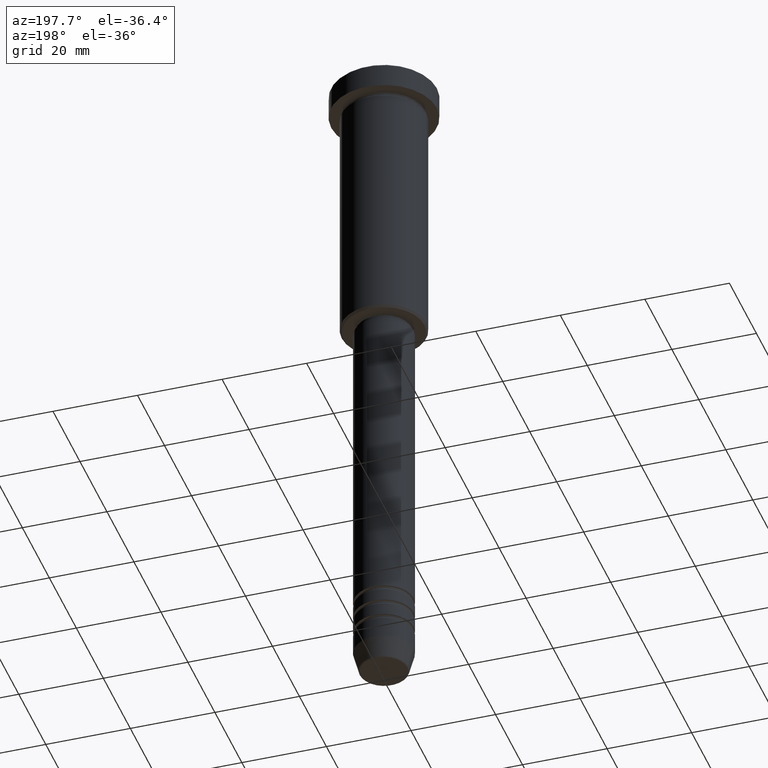
[diagram: clean part render]
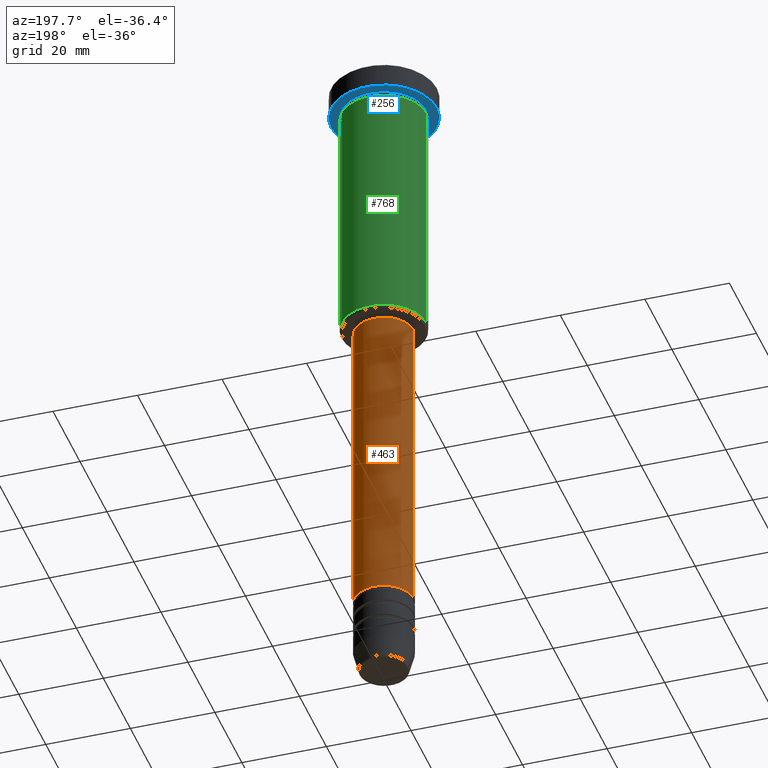
[diagram: same view with three faces highlighted in distinct colors, each labeled with its STEP entity id]
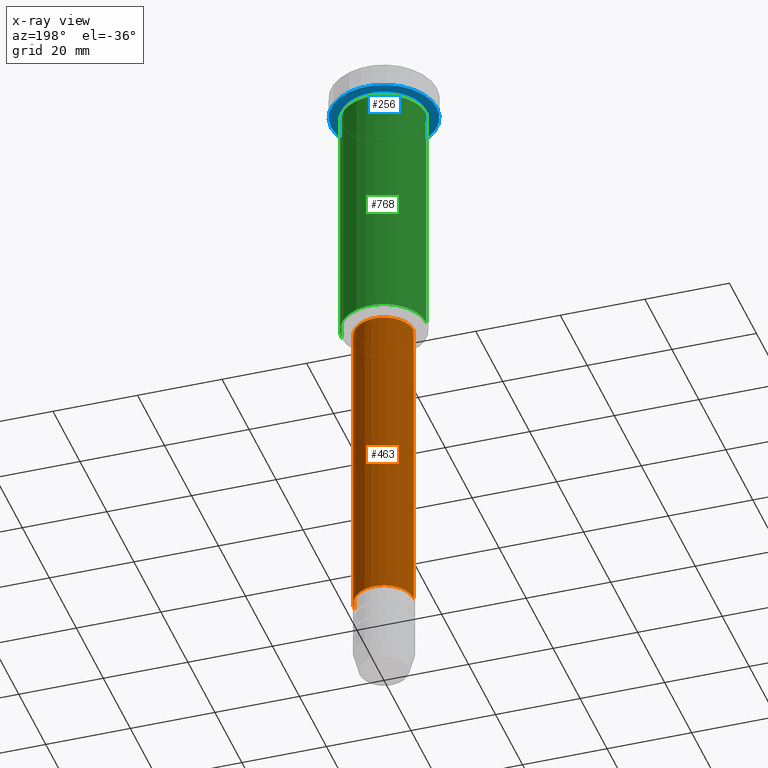
[diagram: x-ray of the same camera — body ghosted, the three highlighted faces saturated]
A machine part, auxiliary view with three faces highlighted in distinct colors.
The next image is the same camera in x-ray (body ghosted, the three faces saturated) — at least one of them is partly hidden behind the body in this view.
Their STEP definitions:

[orange] entity #463 — the highlighted cylindrical surface (edge-blend (fillet) strip) has radius 7 mm, axis along (-0, -0, 1).
#7 = VERTEX_POINT ( 'NONE', #535 ) ;
#12 = EDGE_CURVE ( 'NONE', #7, #333, #673, .T. ) ;
#33 = AXIS2_PLACEMENT_3D ( 'NONE', #456, #915, #97 ) ;
#50 = CARTESIAN_POINT ( 'NONE',  ( 0.000000000000000000, 0.000000000000000000, -67.00000000000002842 ) ) ;
#83 = DIRECTION ( 'NONE',  ( -0.000000000000000000, -0.000000000000000000, 1.000000000000000000 ) ) ;
#86 = CARTESIAN_POINT ( 'NONE',  ( -7.000000000000000888, 8.572527594031474176E-16, 0.000000000000000000 ) ) ;
#97 = DIRECTION ( 'NONE',  ( 1.000000000000000000, 0.000000000000000000, 0.000000000000000000 ) ) ;
#116 = DIRECTION ( 'NONE',  ( -0.000000000000000000, -0.000000000000000000, 1.000000000000000000 ) ) ;
#176 = ORIENTED_EDGE ( 'NONE', *, *, #932, .T. ) ;
#209 = CARTESIAN_POINT ( 'NONE',  ( 7.000000000000000888, 0.000000000000000000, -67.00000000000002842 ) ) ;
#243 = DIRECTION ( 'NONE',  ( -0.000000000000000000, -0.000000000000000000, 1.000000000000000000 ) ) ;
#333 = VERTEX_POINT ( 'NONE', #1119 ) ;
#344 = VERTEX_POINT ( 'NONE', #670 ) ;
#376 = CARTESIAN_POINT ( 'NONE',  ( 7.000000000000000888, 0.000000000000000000, 0.000000000000000000 ) ) ;
#456 = CARTESIAN_POINT ( 'NONE',  ( 0.000000000000000000, 0.000000000000000000, -141.9999999999999147 ) ) ;
#463 = ADVANCED_FACE ( 'NONE', ( #1038 ), #571, .T. ) ;
#505 = CIRCLE ( 'NONE', #760, 7.000000000000000888 ) ;
#535 = CARTESIAN_POINT ( 'NONE',  ( 7.000000000000000888, 0.000000000000000000, -141.9999999999999147 ) ) ;
#571 = CYLINDRICAL_SURFACE ( 'NONE', #1146, 7.000000000000000888 ) ;
#595 = EDGE_CURVE ( 'NONE', #7, #1072, #1135, .T. ) ;
#670 = CARTESIAN_POINT ( 'NONE',  ( -7.000000000000000888, 8.572527594031474176E-16, -67.00000000000002842 ) ) ;
#673 = CIRCLE ( 'NONE', #33, 7.000000000000000888 ) ;
#760 = AXIS2_PLACEMENT_3D ( 'NONE', #50, #243, #1062 ) ;
#764 = EDGE_CURVE ( 'NONE', #1072, #344, #505, .T. ) ;
#859 = CARTESIAN_POINT ( 'NONE',  ( 0.000000000000000000, 0.000000000000000000, 0.000000000000000000 ) ) ;
#887 = ORIENTED_EDGE ( 'NONE', *, *, #12, .T. ) ;
#904 = ORIENTED_EDGE ( 'NONE', *, *, #764, .F. ) ;
#915 = DIRECTION ( 'NONE',  ( -0.000000000000000000, -0.000000000000000000, 1.000000000000000000 ) ) ;
#932 = EDGE_CURVE ( 'NONE', #333, #344, #1181, .T. ) ;
#940 = DIRECTION ( 'NONE',  ( 1.000000000000000000, 0.000000000000000000, 0.000000000000000000 ) ) ;
#996 = VECTOR ( 'NONE', #116, 1000.000000000000000 ) ;
#997 = ORIENTED_EDGE ( 'NONE', *, *, #595, .F. ) ;
#1013 = VECTOR ( 'NONE', #83, 1000.000000000000000 ) ;
#1038 = FACE_OUTER_BOUND ( 'NONE', #1127, .T. ) ;
#1062 = DIRECTION ( 'NONE',  ( 1.000000000000000000, 0.000000000000000000, 0.000000000000000000 ) ) ;
#1072 = VERTEX_POINT ( 'NONE', #209 ) ;
#1119 = CARTESIAN_POINT ( 'NONE',  ( -7.000000000000000888, 8.572527594031474176E-16, -141.9999999999999147 ) ) ;
#1127 = EDGE_LOOP ( 'NONE', ( #887, #176, #904, #997 ) ) ;
#1135 = LINE ( 'NONE', #376, #996 ) ;
#1146 = AXIS2_PLACEMENT_3D ( 'NONE', #859, #1151, #940 ) ;
#1151 = DIRECTION ( 'NONE',  ( -0.000000000000000000, -0.000000000000000000, 1.000000000000000000 ) ) ;
#1181 = LINE ( 'NONE', #86, #1013 ) ;

[blue] entity #256 — the highlighted planar face has unit normal (0, 0, -1).
#62 = EDGE_CURVE ( 'NONE', #602, #783, #795, .T. ) ;
#74 = DIRECTION ( 'NONE',  ( 1.000000000000000000, 0.000000000000000000, 0.000000000000000000 ) ) ;
#87 = DIRECTION ( 'NONE',  ( -0.000000000000000000, -0.000000000000000000, 1.000000000000000000 ) ) ;
#101 = CIRCLE ( 'NONE', #624, 10.00000000000000000 ) ;
#133 = CARTESIAN_POINT ( 'NONE',  ( 12.50000000000000000, 0.000000000000000000, -5.999999999999996447 ) ) ;
#142 = ORIENTED_EDGE ( 'NONE', *, *, #62, .F. ) ;
#147 = EDGE_LOOP ( 'NONE', ( #1079, #936 ) ) ;
#166 = ORIENTED_EDGE ( 'NONE', *, *, #377, .F. ) ;
#220 = CARTESIAN_POINT ( 'NONE',  ( 0.000000000000000000, 0.000000000000000000, -5.999999999999996447 ) ) ;
#256 = ADVANCED_FACE ( 'NONE', ( #584, #958 ), #438, .T. ) ;
#332 = AXIS2_PLACEMENT_3D ( 'NONE', #1064, #87, #1118 ) ;
#345 = CARTESIAN_POINT ( 'NONE',  ( 0.000000000000000000, 0.000000000000000000, -5.999999999999996447 ) ) ;
#355 = AXIS2_PLACEMENT_3D ( 'NONE', #845, #386, #849 ) ;
#377 = EDGE_CURVE ( 'NONE', #783, #602, #758, .T. ) ;
#378 = DIRECTION ( 'NONE',  ( -1.000000000000000000, 0.000000000000000000, 0.000000000000000000 ) ) ;
#386 = DIRECTION ( 'NONE',  ( -0.000000000000000000, -0.000000000000000000, 1.000000000000000000 ) ) ;
#389 = CIRCLE ( 'NONE', #355, 10.00000000000000000 ) ;
#394 = EDGE_LOOP ( 'NONE', ( #142, #166 ) ) ;
#438 = PLANE ( 'NONE',  #737 ) ;
#540 = DIRECTION ( 'NONE',  ( -1.000000000000000000, 0.000000000000000000, -0.000000000000000000 ) ) ;
#573 = AXIS2_PLACEMENT_3D ( 'NONE', #345, #713, #74 ) ;
#579 = EDGE_CURVE ( 'NONE', #627, #978, #389, .T. ) ;
#584 = FACE_BOUND ( 'NONE', #147, .T. ) ;
#602 = VERTEX_POINT ( 'NONE', #133 ) ;
#624 = AXIS2_PLACEMENT_3D ( 'NONE', #220, #843, #378 ) ;
#627 = VERTEX_POINT ( 'NONE', #743 ) ;
#707 = CARTESIAN_POINT ( 'NONE',  ( 0.000000000000000000, 12.50000000000000000, -5.999999999999996447 ) ) ;
#713 = DIRECTION ( 'NONE',  ( -0.000000000000000000, -0.000000000000000000, 1.000000000000000000 ) ) ;
#737 = AXIS2_PLACEMENT_3D ( 'NONE', #707, #1082, #540 ) ;
#743 = CARTESIAN_POINT ( 'NONE',  ( 10.00000000000000000, 1.224646799147353256E-15, -5.999999999999996447 ) ) ;
#758 = CIRCLE ( 'NONE', #332, 12.50000000000000000 ) ;
#769 = CARTESIAN_POINT ( 'NONE',  ( -12.50000000000000000, 1.530808498934191521E-15, -5.999999999999996447 ) ) ;
#783 = VERTEX_POINT ( 'NONE', #769 ) ;
#795 = CIRCLE ( 'NONE', #573, 12.50000000000000000 ) ;
#843 = DIRECTION ( 'NONE',  ( -0.000000000000000000, -0.000000000000000000, 1.000000000000000000 ) ) ;
#845 = CARTESIAN_POINT ( 'NONE',  ( 0.000000000000000000, 0.000000000000000000, -5.999999999999996447 ) ) ;
#849 = DIRECTION ( 'NONE',  ( -1.000000000000000000, 0.000000000000000000, 0.000000000000000000 ) ) ;
#936 = ORIENTED_EDGE ( 'NONE', *, *, #579, .T. ) ;
#958 = FACE_OUTER_BOUND ( 'NONE', #394, .T. ) ;
#978 = VERTEX_POINT ( 'NONE', #1080 ) ;
#1064 = CARTESIAN_POINT ( 'NONE',  ( 0.000000000000000000, 0.000000000000000000, -5.999999999999996447 ) ) ;
#1079 = ORIENTED_EDGE ( 'NONE', *, *, #1112, .T. ) ;
#1080 = CARTESIAN_POINT ( 'NONE',  ( -10.00000000000000000, 0.000000000000000000, -5.999999999999996447 ) ) ;
#1082 = DIRECTION ( 'NONE',  ( 0.000000000000000000, 0.000000000000000000, -1.000000000000000000 ) ) ;
#1112 = EDGE_CURVE ( 'NONE', #978, #627, #101, .T. ) ;
#1118 = DIRECTION ( 'NONE',  ( 1.000000000000000000, 0.000000000000000000, 0.000000000000000000 ) ) ;

[green] entity #768 — the highlighted cylindrical surface (partial cylindrical patch) has radius 10 mm, axis along (-0, -0, 1).
#42 = EDGE_CURVE ( 'NONE', #68, #1065, #991, .T. ) ;
#61 = DIRECTION ( 'NONE',  ( -0.000000000000000000, -0.000000000000000000, 1.000000000000000000 ) ) ;
#68 = VERTEX_POINT ( 'NONE', #825 ) ;
#102 = DIRECTION ( 'NONE',  ( 1.000000000000000000, 0.000000000000000000, 0.000000000000000000 ) ) ;
#140 = DIRECTION ( 'NONE',  ( 1.000000000000000000, 0.000000000000000000, 0.000000000000000000 ) ) ;
#179 = CARTESIAN_POINT ( 'NONE',  ( 10.00000000000000000, 0.000000000000000000, 0.000000000000000000 ) ) ;
#197 = VECTOR ( 'NONE', #478, 1000.000000000000000 ) ;
#212 = ORIENTED_EDGE ( 'NONE', *, *, #819, .T. ) ;
#216 = AXIS2_PLACEMENT_3D ( 'NONE', #537, #632, #102 ) ;
#224 = VERTEX_POINT ( 'NONE', #981 ) ;
#232 = CYLINDRICAL_SURFACE ( 'NONE', #720, 10.00000000000000000 ) ;
#234 = ORIENTED_EDGE ( 'NONE', *, *, #1035, .F. ) ;
#472 = CARTESIAN_POINT ( 'NONE',  ( -10.00000000000000000, 1.224646799147353256E-15, -65.50000000000001421 ) ) ;
#478 = DIRECTION ( 'NONE',  ( -0.000000000000000000, -0.000000000000000000, 1.000000000000000000 ) ) ;
#483 = VECTOR ( 'NONE', #529, 1000.000000000000000 ) ;
#488 = EDGE_LOOP ( 'NONE', ( #1182, #212, #234, #1132 ) ) ;
#529 = DIRECTION ( 'NONE',  ( -0.000000000000000000, -0.000000000000000000, 1.000000000000000000 ) ) ;
#537 = CARTESIAN_POINT ( 'NONE',  ( 0.000000000000000000, 0.000000000000000000, -6.999999999999996447 ) ) ;
#611 = CARTESIAN_POINT ( 'NONE',  ( 0.000000000000000000, 0.000000000000000000, 0.000000000000000000 ) ) ;
#632 = DIRECTION ( 'NONE',  ( -0.000000000000000000, -0.000000000000000000, 1.000000000000000000 ) ) ;
#698 = CARTESIAN_POINT ( 'NONE',  ( 0.000000000000000000, 0.000000000000000000, -65.50000000000001421 ) ) ;
#699 = AXIS2_PLACEMENT_3D ( 'NONE', #698, #61, #1070 ) ;
#720 = AXIS2_PLACEMENT_3D ( 'NONE', #611, #791, #140 ) ;
#741 = CIRCLE ( 'NONE', #216, 10.00000000000000000 ) ;
#767 = CARTESIAN_POINT ( 'NONE',  ( -10.00000000000000000, 1.224646799147353256E-15, 0.000000000000000000 ) ) ;
#768 = ADVANCED_FACE ( 'NONE', ( #882 ), #232, .T. ) ;
#791 = DIRECTION ( 'NONE',  ( -0.000000000000000000, -0.000000000000000000, 1.000000000000000000 ) ) ;
#819 = EDGE_CURVE ( 'NONE', #1065, #1061, #948, .T. ) ;
#825 = CARTESIAN_POINT ( 'NONE',  ( 10.00000000000000000, 0.000000000000000000, -65.50000000000001421 ) ) ;
#882 = FACE_OUTER_BOUND ( 'NONE', #488, .T. ) ;
#905 = LINE ( 'NONE', #179, #483 ) ;
#948 = LINE ( 'NONE', #767, #197 ) ;
#981 = CARTESIAN_POINT ( 'NONE',  ( 10.00000000000000000, 0.000000000000000000, -6.999999999999996447 ) ) ;
#991 = CIRCLE ( 'NONE', #699, 10.00000000000000000 ) ;
#1035 = EDGE_CURVE ( 'NONE', #224, #1061, #741, .T. ) ;
#1037 = CARTESIAN_POINT ( 'NONE',  ( -10.00000000000000000, 1.224646799147353256E-15, -6.999999999999996447 ) ) ;
#1061 = VERTEX_POINT ( 'NONE', #1037 ) ;
#1065 = VERTEX_POINT ( 'NONE', #472 ) ;
#1070 = DIRECTION ( 'NONE',  ( -1.000000000000000000, 0.000000000000000000, 0.000000000000000000 ) ) ;
#1132 = ORIENTED_EDGE ( 'NONE', *, *, #1142, .F. ) ;
#1142 = EDGE_CURVE ( 'NONE', #68, #224, #905, .T. ) ;
#1182 = ORIENTED_EDGE ( 'NONE', *, *, #42, .T. ) ;